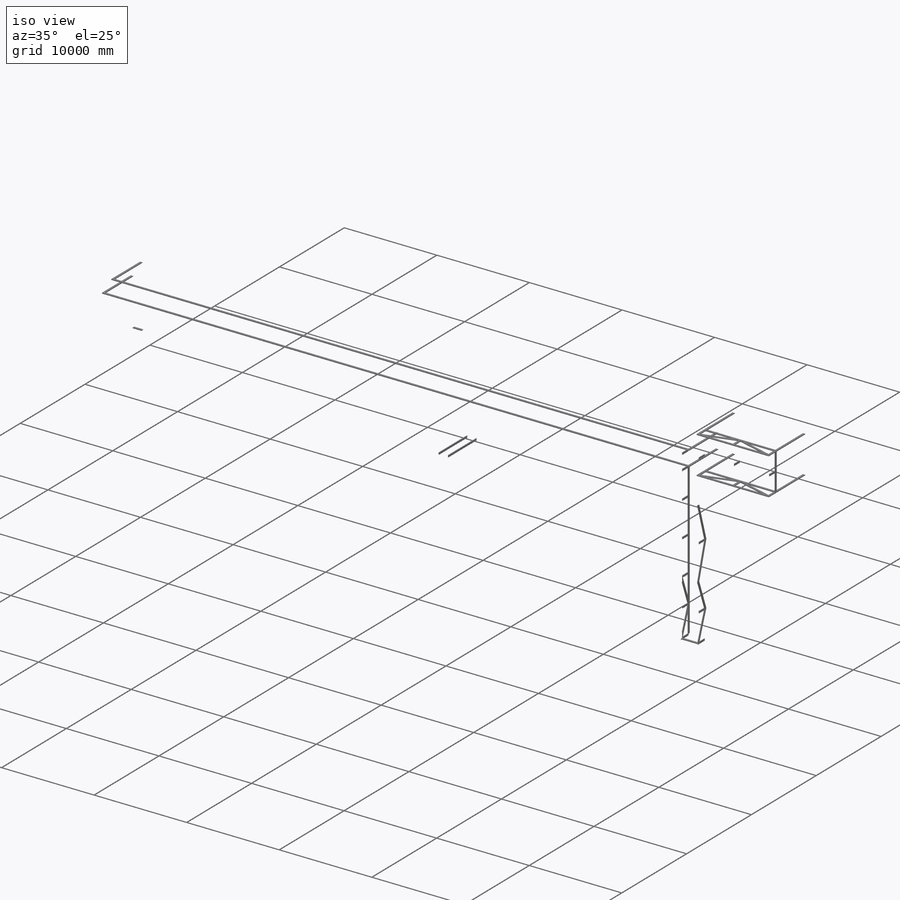
[diagram: iso view]
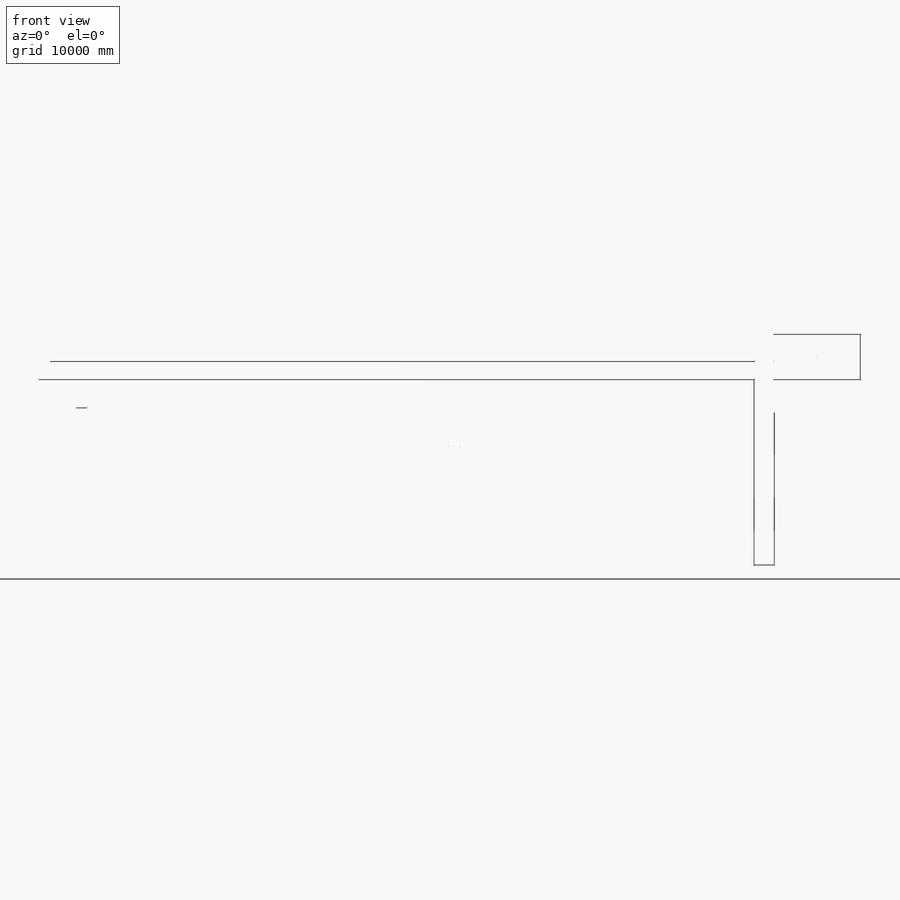
[diagram: front view]
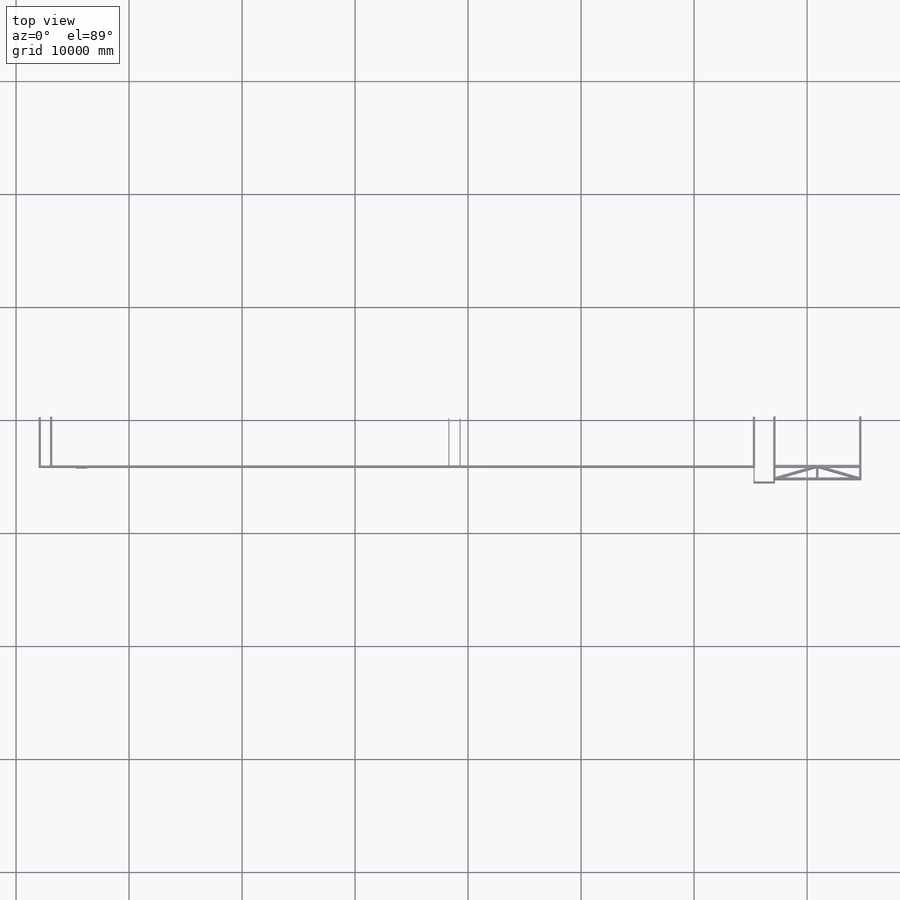
[diagram: top view]
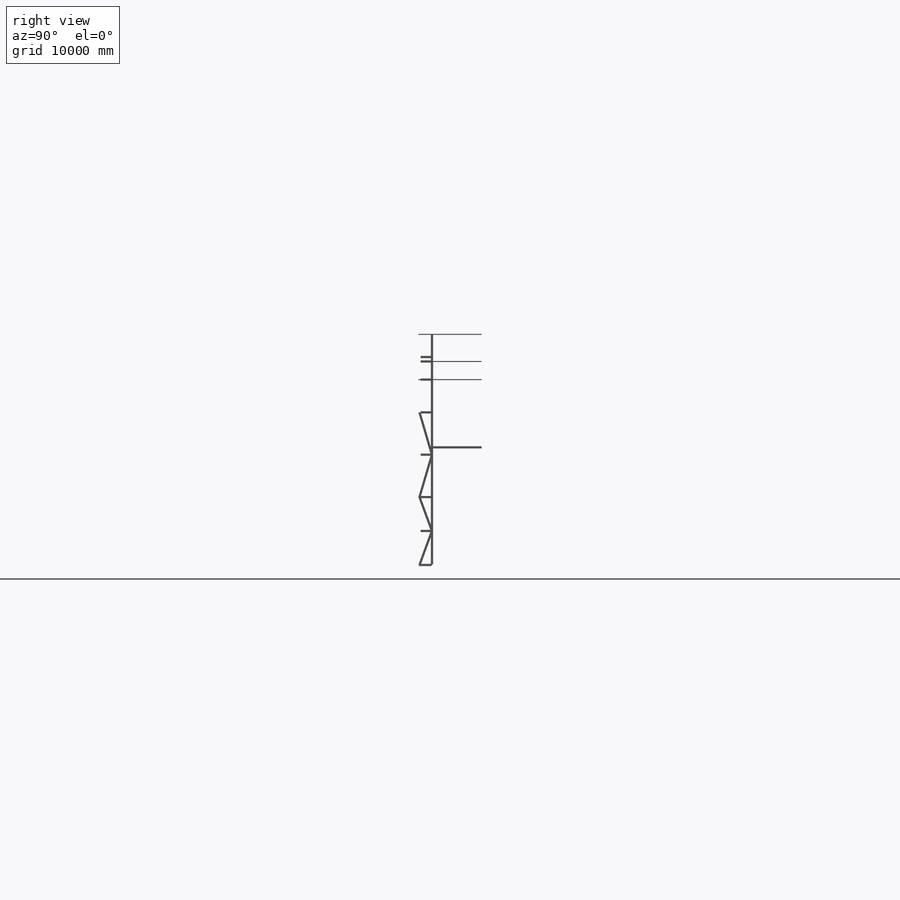
[diagram: right view]
SOLIDWORKS PART (.sldprt)
format: sldprt  version: not decoded by parser v0  size: 11,560,960 bytes
history: native  units: mm
features: sketch x62, plane x49, extrude x12, material x1 (+16 scaffold rows collapsed)
feature tree (140):
  scaffold x16  (default folders/planes/origin — collapsed)
  material  "Material <not specified>"
  sketch  "3DSketch1"  dims[c1.D1=4400.0mm c1.D2=5500.0mm c1.D3=~5606.794977mm c1.D4=~5606.794977mm c2.D3=6000.0mm c2.D4=7500.0mm c2.D5=~3884.759568mm c2.D8=3750.0mm c2.D6=~3132.391941mm c3.D8=3750.0mm c3.D7=~3323.580694mm c3.D6=3000.0mm c4.D8=~3325.944288mm c4.D10=3000.0mm c4.D9=~10112.390477mm c4.D14=10500.0mm c5.D10=~10537.302611mm c5.D11=~10537.302611mm c6.D10=1600.0mm c6.D11=1600.0mm c7.D10=1600.0mm c7.D11=1600.0mm c8.D10=~2683.731747mm c8.D52=2500.0mm c8.D11=3000.0mm c8.D12=3000.0mm c8.D13=1500.0mm c8.D9=3000.0mm c9.D13=1600.0mm c9.D14=1600.0mm c10.D13=3000.0mm c10.D14=3000.0mm c10.D15=2000.0mm c10.D16=~1000.004703mm c11.D16=~0.175717deg c11.D17=~0.175717deg c12.D16=2000.0mm c12.D17=3000.0mm c12.D18=3000.0mm c12.D19=3000.0mm c12.D20=3000.0mm c12.D21=3000.0mm c12.D22=3000.0mm c12.D23=3000.0mm c12.D24=3000.0mm c12.D25=3000.0mm c12.D26=3000.0mm c12.D27=~1601.719555mm c13.D27=~2.655164deg c13.D28=~2.655164deg c14.D27=3000.0mm c14.D28=~2543.759718mm c14.D31=3000.0mm c14.D29=2500.0mm c14.D30=~2511.180107mm c14.D34=2500.0mm c15.D31=~1842.186407mm c15.D50=3000.0mm c15.D32=2700.0mm c15.D33=2500.0mm c15.D34=~1393.871488mm c15.D56=2500.0mm c15.D35=~748.455741mm c16.D34=2500.0mm c16.D36=~2060.15255mm c17.D34=2500.0mm c17.D37=~1251.768146mm c18.D34=2500.0mm c18.D38=2500.0mm c18.D39=1000.0mm c18.D40=1000.0mm c19.D39=2500.0mm c19.D40=2700.0mm c19.D41=1000.0mm c19.D42=1000.0mm c20.D41=2700.0mm c20.D42=600.0mm c20.D43=600.0mm c20.D44=600.0mm c20.D45=600.0mm c20.D46=600.0mm c20.D47=~1328.399488mm c20.D48=~1328.399488mm c21.D47=~1328.399488mm c21.D34=600.0mm c21.D48=2184.8039mm c21.D30=600.0mm c21.D49=~1180.117243mm c22.D30=600.0mm c22.D50=~991.113911mm c22.D51=~323.538583mm c22.D55=600.0mm c22.D52=~1273.176117mm c22.D54=~1273.176117mm c22.D53=600.0mm c23.D54=~647.315945mm c23.D55=60.0mm c23.D52=~6018.518519mm c24.D55=~555.555556mm c24.D54=600.0mm c25.D55=~66064.860382mm c25.D56=~66064.860382mm c25.D52=~4496.598216mm c25.D51=~4959.947643mm c26.D52=~4218.120743mm c26.D56=4000.0mm c26.D55=~725.218719mm c27.D52=600.0mm c27.D28=3000.0mm c27.D31=3000.0mm c27.D50=2000.0mm c27.D51=2000.0mm c28.D50=~475.862069mm c28.D51=600.0mm c29.D50=600.0mm c29.D51=600.0mm c29.D52=0.0mm c29.D6=3000.0mm c29.D7=~3749.998204mm c29.D8=~2900.000241mm c29.D10=~2900.000241mm c30.D8=600.0mm c30.D10=600.0mm c31.D8=2500.0mm c31.D10=12000.0mm c31.D52=2000.0mm c31.D55=2000.0mm c31.D30=5000.0mm c31.D34=~7686.556055mm c31.D35=~7686.556055mm c32.D34=~7686.556055mm c32.D35=~7686.556055mm c33.D34=7600.0mm c33.D35=2400.0mm c33.D36=4000.0mm c33.D37=4000.0mm c34.D36=4000.0mm c34.D37=4000.0mm]
  plane  "Plane1"
  sketch  "Sketch1"  dims[c1.D5=6.35mm c1.D7=2.54mm c1.D8=2.54mm c1.D10=2.54mm c1.D11=2.54mm c1.RA=2.54mm c2.D5=7.5mm c2.D10=10.0mm c2.D1=90.0mm c2.D2=6.35mm c2.D3=44.45mm c2.D4=12.7mm c2.D6=90.0deg c3.D2=97.0deg c3.D7=90.0deg c3.D8=6.35mm c3.D9=90.0deg c3.D10=19.05mm c4.D2=90.0deg c4.D6=99.0deg c4.D7=19.05mm c4.D9=99.0deg c4.D12=5.08mm c4.D8=19.05mm c5.D6=90.0deg c5.D2=200.0mm c5.D3=7.5mm c6.D6=90.0deg c6.D7=90.0deg c6.D8=~157.817745mm c7.D6=~19.183835mm c8.D6=9.463deg c8.D7=~13.491778mm c9.D7=9.463deg c9.D2=~6.364353mm c9.D10=22.098mm c9.D6=184.023mm c10.D6=9.463deg c11.D6=~62.307608mm c12.D6=170.537deg c13.D6=184.023mm c14.D6=170.537deg c15.D6=184.023mm c16.D6=170.537deg c17.D6=~6.747162mm c18.D6=99.463deg c18.D7=~6.747162mm c19.D7=260.537deg c20.D7=~6.747162mm c21.D7=99.463deg c21.D9=45.0mm c21.D11=100.0mm c21.D10=~1.508872mm]
  plane  "Plane2"
  sketch  "Sketch11"  dims[c1.D5=6.35mm c1.D7=2.54mm c1.D8=2.54mm c1.D10=2.54mm c1.D11=2.54mm c1.RA=2.54mm c2.D5=7.5mm c2.D10=10.0mm c2.D1=90.0mm c2.D2=6.35mm c2.D3=44.45mm c2.D4=12.7mm c2.D6=90.0deg c3.D2=97.0deg c3.D7=90.0deg c3.D8=6.35mm c3.D9=90.0deg c3.D10=19.05mm c4.D2=90.0deg c4.D6=99.0deg c4.D7=19.05mm c4.D9=99.0deg c4.D12=5.08mm c4.D8=19.05mm c5.D6=90.0deg c5.D2=200.0mm c5.D3=7.5mm c6.D6=90.0deg c6.D7=90.0deg c6.D8=~157.817745mm c7.D6=~19.183835mm c8.D6=9.463deg c8.D7=~13.491778mm c9.D7=9.463deg c9.D2=~6.364353mm c9.D10=22.098mm c9.D6=184.023mm c10.D6=9.463deg c11.D6=~62.307608mm c12.D6=170.537deg c13.D6=184.023mm c14.D6=170.537deg c15.D6=184.023mm c16.D6=170.537deg c17.D6=~6.747162mm c18.D6=99.463deg c18.D7=~6.747162mm c19.D7=260.537deg c20.D7=~6.747162mm c21.D7=99.463deg c21.D9=45.0mm c21.D11=100.0mm c21.D10=~1.508872mm]
  plane  "Plane3"
  sketch  "Sketch12"  dims[c1.D5=6.35mm c1.D7=2.54mm c1.D8=2.54mm c1.D10=2.54mm c1.D11=2.54mm c1.RA=2.54mm c2.D5=7.5mm c2.D10=10.0mm c2.D1=90.0mm c2.D2=6.35mm c2.D3=44.45mm c2.D4=12.7mm c2.D6=90.0deg c3.D2=97.0deg c3.D7=90.0deg c3.D8=6.35mm c3.D9=90.0deg c3.D10=19.05mm c4.D2=90.0deg c4.D6=99.0deg c4.D7=19.05mm c4.D9=99.0deg c4.D12=5.08mm c4.D8=19.05mm c5.D6=90.0deg c5.D2=200.0mm c5.D3=7.5mm c6.D6=90.0deg c6.D7=90.0deg c6.D8=~157.817745mm c7.D6=~19.183835mm c8.D6=9.463deg c8.D7=~13.491778mm c9.D7=9.463deg c9.D2=~6.364353mm c9.D10=22.098mm c9.D6=184.023mm c10.D6=9.463deg c11.D6=~62.307608mm c12.D6=170.537deg c13.D6=184.023mm c14.D6=170.537deg c15.D6=184.023mm c16.D6=170.537deg c17.D6=~6.747162mm c18.D6=99.463deg c18.D7=~6.747162mm c19.D7=260.537deg c20.D7=~6.747162mm c21.D7=99.463deg c21.D9=45.0mm c21.D11=100.0mm c21.D10=~1.508872mm]
  plane  "Plane4"
  sketch  "Sketch13"  dims[c1.D5=6.35mm c1.D7=2.54mm c1.D8=2.54mm c1.D10=2.54mm c1.D11=2.54mm c1.RA=2.54mm c2.D5=7.5mm c2.D10=10.0mm c2.D1=90.0mm c2.D2=6.35mm c2.D3=44.45mm c2.D4=12.7mm c2.D6=90.0deg c3.D2=97.0deg c3.D7=90.0deg c3.D8=6.35mm c3.D9=90.0deg c3.D10=19.05mm c4.D2=90.0deg c4.D6=99.0deg c4.D7=19.05mm c4.D9=99.0deg c4.D12=5.08mm c4.D8=19.05mm c5.D6=90.0deg c5.D2=200.0mm c5.D3=7.5mm c6.D6=90.0deg c6.D7=90.0deg c6.D8=~157.817745mm c7.D6=~19.183835mm c8.D6=9.463deg c8.D7=~13.491778mm c9.D7=9.463deg c9.D2=~6.364353mm c9.D10=22.098mm c9.D6=184.023mm c10.D6=9.463deg c11.D6=~62.307608mm c12.D6=170.537deg c13.D6=184.023mm c14.D6=170.537deg c15.D6=184.023mm c16.D6=170.537deg c17.D6=~6.747162mm c18.D6=99.463deg c18.D7=~6.747162mm c19.D7=260.537deg c20.D7=~6.747162mm c21.D7=99.463deg c21.D9=45.0mm c21.D11=100.0mm c21.D10=~1.508872mm]
  plane  "Plane5"
  sketch  "Sketch14"  dims[c1.D5=6.35mm c1.D7=2.54mm c1.D8=2.54mm c1.D10=2.54mm c1.D11=2.54mm c1.RA=2.54mm c2.D5=7.5mm c2.D10=10.0mm c2.D1=90.0mm c2.D2=6.35mm c2.D3=44.45mm c2.D4=12.7mm c2.D6=90.0deg c3.D2=97.0deg c3.D7=90.0deg c3.D8=6.35mm c3.D9=90.0deg c3.D10=19.05mm c4.D2=90.0deg c4.D6=99.0deg c4.D7=19.05mm c4.D9=99.0deg c4.D12=5.08mm c4.D8=19.05mm c5.D6=90.0deg c5.D2=200.0mm c5.D3=7.5mm c6.D6=90.0deg c6.D7=90.0deg c6.D8=~157.817745mm c7.D6=~19.183835mm c8.D6=9.463deg c8.D7=~13.491778mm c9.D7=9.463deg c9.D2=~6.364353mm c9.D10=22.098mm c9.D6=184.023mm c10.D6=9.463deg c11.D6=~62.307608mm c12.D6=170.537deg c13.D6=184.023mm c14.D6=170.537deg c15.D6=184.023mm c16.D6=170.537deg c17.D6=~6.747162mm c18.D6=99.463deg c18.D7=~6.747162mm c19.D7=260.537deg c20.D7=~6.747162mm c21.D7=99.463deg c21.D9=45.0mm c21.D11=100.0mm c21.D10=~1.508872mm]
  plane  "Plane6"
  sketch  "Sketch15"  dims[c1.D5=6.35mm c1.D7=2.54mm c1.D8=2.54mm c1.D10=2.54mm c1.D11=2.54mm c1.RA=2.54mm c2.D5=7.5mm c2.D10=10.0mm c2.D1=90.0mm c2.D2=6.35mm c2.D3=44.45mm c2.D4=12.7mm c2.D6=90.0deg c3.D2=97.0deg c3.D7=90.0deg c3.D8=6.35mm c3.D9=90.0deg c3.D10=19.05mm c4.D2=90.0deg c4.D6=99.0deg c4.D7=19.05mm c4.D9=99.0deg c4.D12=5.08mm c4.D8=19.05mm c5.D6=90.0deg c5.D2=200.0mm c5.D3=7.5mm c6.D6=90.0deg c6.D7=90.0deg c6.D8=~157.817745mm c7.D6=~19.183835mm c8.D6=9.463deg c8.D7=~13.491778mm c9.D7=9.463deg c9.D2=~6.364353mm c9.D10=22.098mm c9.D6=184.023mm c10.D6=9.463deg c11.D6=~62.307608mm c12.D6=170.537deg c13.D6=184.023mm c14.D6=170.537deg c15.D6=184.023mm c16.D6=170.537deg c17.D6=~6.747162mm c18.D6=99.463deg c18.D7=~6.747162mm c19.D7=260.537deg c20.D7=~6.747162mm c21.D7=99.463deg c21.D9=45.0mm c21.D11=100.0mm c21.D10=~1.508872mm]
  plane  "Plane7"
  sketch  "Sketch16"  dims[c1.D5=6.35mm c1.D7=2.54mm c1.D8=2.54mm c1.D10=2.54mm c1.D11=2.54mm c1.RA=2.54mm c2.D5=7.5mm c2.D10=10.0mm c2.D1=90.0mm c2.D2=6.35mm c2.D3=44.45mm c2.D4=12.7mm c2.D6=90.0deg c3.D2=97.0deg c3.D7=90.0deg c3.D8=6.35mm c3.D9=90.0deg c3.D10=19.05mm c4.D2=90.0deg c4.D6=99.0deg c4.D7=19.05mm c4.D9=99.0deg c4.D12=5.08mm c4.D8=19.05mm c5.D6=90.0deg c5.D2=200.0mm c5.D3=7.5mm c6.D6=90.0deg c6.D7=90.0deg c6.D8=~157.817745mm c7.D6=~19.183835mm c8.D6=9.463deg c8.D7=~13.491778mm c9.D7=9.463deg c9.D2=~6.364353mm c9.D10=22.098mm c9.D6=184.023mm c10.D6=9.463deg c11.D6=~62.307608mm c12.D6=170.537deg c13.D6=184.023mm c14.D6=170.537deg c15.D6=184.023mm c16.D6=170.537deg c17.D6=~6.747162mm c18.D6=99.463deg c18.D7=~6.747162mm c19.D7=260.537deg c20.D7=~6.747162mm c21.D7=99.463deg c21.D9=45.0mm c21.D11=100.0mm c21.D10=~1.508872mm]
  plane  "Plane8"
  sketch  "Sketch17"  dims[c1.D5=6.35mm c1.D7=2.54mm c1.D8=2.54mm c1.D10=2.54mm c1.D11=2.54mm c1.RA=2.54mm c2.D5=7.5mm c2.D10=10.0mm c2.D1=90.0mm c2.D2=6.35mm c2.D3=44.45mm c2.D4=12.7mm c2.D6=90.0deg c3.D2=97.0deg c3.D7=90.0deg c3.D8=6.35mm c3.D9=90.0deg c3.D10=19.05mm c4.D2=90.0deg c4.D6=99.0deg c4.D7=19.05mm c4.D9=99.0deg c4.D12=5.08mm c4.D8=19.05mm c5.D6=90.0deg c5.D2=200.0mm c5.D3=7.5mm c6.D6=90.0deg c6.D7=90.0deg c6.D8=~157.817745mm c7.D6=~19.183835mm c8.D6=9.463deg c8.D7=~13.491778mm c9.D7=9.463deg c9.D2=~6.364353mm c9.D10=22.098mm c9.D6=184.023mm c10.D6=9.463deg c11.D6=~62.307608mm c12.D6=170.537deg c13.D6=184.023mm c14.D6=170.537deg c15.D6=184.023mm c16.D6=170.537deg c17.D6=~6.747162mm c18.D6=99.463deg c18.D7=~6.747162mm c19.D7=260.537deg c20.D7=~6.747162mm c21.D7=99.463deg c21.D9=45.0mm c21.D11=100.0mm c21.D10=~1.508872mm]
  plane  "Plane9"
  sketch  "Sketch18"  dims[c1.D5=6.35mm c1.D7=2.54mm c1.D8=2.54mm c1.D10=2.54mm c1.D11=2.54mm c1.RA=2.54mm c2.D5=7.5mm c2.D10=10.0mm c2.D1=90.0mm c2.D2=6.35mm c2.D3=44.45mm c2.D4=12.7mm c2.D6=90.0deg c3.D2=97.0deg c3.D7=90.0deg c3.D8=6.35mm c3.D9=90.0deg c3.D10=19.05mm c4.D2=90.0deg c4.D6=99.0deg c4.D7=19.05mm c4.D9=99.0deg c4.D12=5.08mm c4.D8=19.05mm c5.D6=90.0deg c5.D2=200.0mm c5.D3=7.5mm c6.D6=90.0deg c6.D7=90.0deg c6.D8=~157.817745mm c7.D6=~19.183835mm c8.D6=9.463deg c8.D7=~13.491778mm c9.D7=9.463deg c9.D2=~6.364353mm c9.D10=22.098mm c9.D6=184.023mm c10.D6=9.463deg c11.D6=~62.307608mm c12.D6=170.537deg c13.D6=184.023mm c14.D6=170.537deg c15.D6=184.023mm c16.D6=170.537deg c17.D6=~6.747162mm c18.D6=99.463deg c18.D7=~6.747162mm c19.D7=260.537deg c20.D7=~6.747162mm c21.D7=99.463deg c21.D9=45.0mm c21.D11=100.0mm c21.D10=~1.508872mm]
  plane  "Plane10"
  sketch  "Sketch19"  dims[c1.D5=6.35mm c1.D7=2.54mm c1.D8=2.54mm c1.D10=2.54mm c1.D11=2.54mm c1.RA=2.54mm c2.D5=7.5mm c2.D10=10.0mm c2.D1=90.0mm c2.D2=6.35mm c2.D3=44.45mm c2.D4=12.7mm c2.D6=90.0deg c3.D2=97.0deg c3.D7=90.0deg c3.D8=6.35mm c3.D9=90.0deg c3.D10=19.05mm c4.D2=90.0deg c4.D6=99.0deg c4.D7=19.05mm c4.D9=99.0deg c4.D12=5.08mm c4.D8=19.05mm c5.D6=90.0deg c5.D2=200.0mm c5.D3=7.5mm c6.D6=90.0deg c6.D7=90.0deg c6.D8=~157.817745mm c7.D6=~19.183835mm c8.D6=9.463deg c8.D7=~13.491778mm c9.D7=9.463deg c9.D2=~6.364353mm c9.D10=22.098mm c9.D6=184.023mm c10.D6=9.463deg c11.D6=~62.307608mm c12.D6=170.537deg c13.D6=184.023mm c14.D6=170.537deg c15.D6=184.023mm c16.D6=170.537deg c17.D6=~6.747162mm c18.D6=99.463deg c18.D7=~6.747162mm c19.D7=260.537deg c20.D7=~6.747162mm c21.D7=99.463deg c21.D9=45.0mm c21.D11=100.0mm c21.D10=~1.508872mm]
  plane  "Plane11"
  sketch  "Sketch110"  dims[c1.D5=6.35mm c1.D7=2.54mm c1.D8=2.54mm c1.D10=2.54mm c1.D11=2.54mm c1.RA=2.54mm c2.D5=7.5mm c2.D10=10.0mm c2.D1=90.0mm c2.D2=6.35mm c2.D3=44.45mm c2.D4=12.7mm c2.D6=90.0deg c3.D2=97.0deg c3.D7=90.0deg c3.D8=6.35mm c3.D9=90.0deg c3.D10=19.05mm c4.D2=90.0deg c4.D6=99.0deg c4.D7=19.05mm c4.D9=99.0deg c4.D12=5.08mm c4.D8=19.05mm c5.D6=90.0deg c5.D2=200.0mm c5.D3=7.5mm c6.D6=90.0deg c6.D7=90.0deg c6.D8=~157.817745mm c7.D6=~19.183835mm c8.D6=9.463deg c8.D7=~13.491778mm c9.D7=9.463deg c9.D2=~6.364353mm c9.D10=22.098mm c9.D6=184.023mm c10.D6=9.463deg c11.D6=~62.307608mm c12.D6=170.537deg c13.D6=184.023mm c14.D6=170.537deg c15.D6=184.023mm c16.D6=170.537deg c17.D6=~6.747162mm c18.D6=99.463deg c18.D7=~6.747162mm c19.D7=260.537deg c20.D7=~6.747162mm c21.D7=99.463deg c21.D9=45.0mm c21.D11=100.0mm c21.D10=~1.508872mm]
  plane  "Plane12"
  sketch  "Sketch111"  dims[c1.D5=6.35mm c1.D7=2.54mm c1.D8=2.54mm c1.D10=2.54mm c1.D11=2.54mm c1.RA=2.54mm c2.D5=7.5mm c2.D10=10.0mm c2.D1=90.0mm c2.D2=6.35mm c2.D3=44.45mm c2.D4=12.7mm c2.D6=90.0deg c3.D2=97.0deg c3.D7=90.0deg c3.D8=6.35mm c3.D9=90.0deg c3.D10=19.05mm c4.D2=90.0deg c4.D6=99.0deg c4.D7=19.05mm c4.D9=99.0deg c4.D12=5.08mm c4.D8=19.05mm c5.D6=90.0deg c5.D2=200.0mm c5.D3=7.5mm c6.D6=90.0deg c6.D7=90.0deg c6.D8=~157.817745mm c7.D6=~19.183835mm c8.D6=9.463deg c8.D7=~13.491778mm c9.D7=9.463deg c9.D2=~6.364353mm c9.D10=22.098mm c9.D6=184.023mm c10.D6=9.463deg c11.D6=~62.307608mm c12.D6=170.537deg c13.D6=184.023mm c14.D6=170.537deg c15.D6=184.023mm c16.D6=170.537deg c17.D6=~6.747162mm c18.D6=99.463deg c18.D7=~6.747162mm c19.D7=260.537deg c20.D7=~6.747162mm c21.D7=99.463deg c21.D9=45.0mm c21.D11=100.0mm c21.D10=~1.508872mm]
  plane  "Plane13"
  sketch  "Sketch112"  dims[c1.D5=6.35mm c1.D7=2.54mm c1.D8=2.54mm c1.D10=2.54mm c1.D11=2.54mm c1.RA=2.54mm c2.D5=7.5mm c2.D10=10.0mm c2.D1=90.0mm c2.D2=6.35mm c2.D3=44.45mm c2.D4=12.7mm c2.D6=90.0deg c3.D2=97.0deg c3.D7=90.0deg c3.D8=6.35mm c3.D9=90.0deg c3.D10=19.05mm c4.D2=90.0deg c4.D6=99.0deg c4.D7=19.05mm c4.D9=99.0deg c4.D12=5.08mm c4.D8=19.05mm c5.D6=90.0deg c5.D2=200.0mm c5.D3=7.5mm c6.D6=90.0deg c6.D7=90.0deg c6.D8=~157.817745mm c7.D6=~19.183835mm c8.D6=9.463deg c8.D7=~13.491778mm c9.D7=9.463deg c9.D2=~6.364353mm c9.D10=22.098mm c9.D6=184.023mm c10.D6=9.463deg c11.D6=~62.307608mm c12.D6=170.537deg c13.D6=184.023mm c14.D6=170.537deg c15.D6=184.023mm c16.D6=170.537deg c17.D6=~6.747162mm c18.D6=99.463deg c18.D7=~6.747162mm c19.D7=260.537deg c20.D7=~6.747162mm c21.D7=99.463deg c21.D9=45.0mm c21.D11=100.0mm c21.D10=~1.508872mm]
  plane  "Plane14"
  sketch  "Sketch113"  dims[c1.D5=6.35mm c1.D7=2.54mm c1.D8=2.54mm c1.D10=2.54mm c1.D11=2.54mm c1.RA=2.54mm c2.D5=7.5mm c2.D10=10.0mm c2.D1=90.0mm c2.D2=6.35mm c2.D3=44.45mm c2.D4=12.7mm c2.D6=90.0deg c3.D2=97.0deg c3.D7=90.0deg c3.D8=6.35mm c3.D9=90.0deg c3.D10=19.05mm c4.D2=90.0deg c4.D6=99.0deg c4.D7=19.05mm c4.D9=99.0deg c4.D12=5.08mm c4.D8=19.05mm c5.D6=90.0deg c5.D2=200.0mm c5.D3=7.5mm c6.D6=90.0deg c6.D7=90.0deg c6.D8=~157.817745mm c7.D6=~19.183835mm c8.D6=9.463deg c8.D7=~13.491778mm c9.D7=9.463deg c9.D2=~6.364353mm c9.D10=22.098mm c9.D6=184.023mm c10.D6=9.463deg c11.D6=~62.307608mm c12.D6=170.537deg c13.D6=184.023mm c14.D6=170.537deg c15.D6=184.023mm c16.D6=170.537deg c17.D6=~6.747162mm c18.D6=99.463deg c18.D7=~6.747162mm c19.D7=260.537deg c20.D7=~6.747162mm c21.D7=99.463deg c21.D9=45.0mm c21.D11=100.0mm c21.D10=~1.508872mm]
  plane  "Plane15"
  sketch  "Sketch114"  dims[c1.D5=6.35mm c1.D7=2.54mm c1.D8=2.54mm c1.D10=2.54mm c1.D11=2.54mm c1.RA=2.54mm c2.D5=7.5mm c2.D10=10.0mm c2.D1=90.0mm c2.D2=6.35mm c2.D3=44.45mm c2.D4=12.7mm c2.D6=90.0deg c3.D2=97.0deg c3.D7=90.0deg c3.D8=6.35mm c3.D9=90.0deg c3.D10=19.05mm c4.D2=90.0deg c4.D6=99.0deg c4.D7=19.05mm c4.D9=99.0deg c4.D12=5.08mm c4.D8=19.05mm c5.D6=90.0deg c5.D2=200.0mm c5.D3=7.5mm c6.D6=90.0deg c6.D7=90.0deg c6.D8=~157.817745mm c7.D6=~19.183835mm c8.D6=9.463deg c8.D7=~13.491778mm c9.D7=9.463deg c9.D2=~6.364353mm c9.D10=22.098mm c9.D6=184.023mm c10.D6=9.463deg c11.D6=~62.307608mm c12.D6=170.537deg c13.D6=184.023mm c14.D6=170.537deg c15.D6=184.023mm c16.D6=170.537deg c17.D6=~6.747162mm c18.D6=99.463deg c18.D7=~6.747162mm c19.D7=260.537deg c20.D7=~6.747162mm c21.D7=99.463deg c21.D9=45.0mm c21.D11=100.0mm c21.D10=~1.508872mm]
  plane  "Plane16"
  sketch  "Sketch115"  dims[c1.D5=6.35mm c1.D7=2.54mm c1.D8=2.54mm c1.D10=2.54mm c1.D11=2.54mm c1.RA=2.54mm c2.D5=7.5mm c2.D10=10.0mm c2.D1=90.0mm c2.D2=6.35mm c2.D3=44.45mm c2.D4=12.7mm c2.D6=90.0deg c3.D2=97.0deg c3.D7=90.0deg c3.D8=6.35mm c3.D9=90.0deg c3.D10=19.05mm c4.D2=90.0deg c4.D6=99.0deg c4.D7=19.05mm c4.D9=99.0deg c4.D12=5.08mm c4.D8=19.05mm c5.D6=90.0deg c5.D2=200.0mm c5.D3=7.5mm c6.D6=90.0deg c6.D7=90.0deg c6.D8=~157.817745mm c7.D6=~19.183835mm c8.D6=9.463deg c8.D7=~13.491778mm c9.D7=9.463deg c9.D2=~6.364353mm c9.D10=22.098mm c9.D6=184.023mm c10.D6=9.463deg c11.D6=~62.307608mm c12.D6=170.537deg c13.D6=184.023mm c14.D6=170.537deg c15.D6=184.023mm c16.D6=170.537deg c17.D6=~6.747162mm c18.D6=99.463deg c18.D7=~6.747162mm c19.D7=260.537deg c20.D7=~6.747162mm c21.D7=99.463deg c21.D9=45.0mm c21.D11=100.0mm c21.D10=~1.508872mm]
  plane  "Plane17"
  sketch  "Sketch116"  dims[c1.D5=6.35mm c1.D7=2.54mm c1.D8=2.54mm c1.D10=2.54mm c1.D11=2.54mm c1.RA=2.54mm c2.D5=7.5mm c2.D10=10.0mm c2.D1=90.0mm c2.D2=6.35mm c2.D3=44.45mm c2.D4=12.7mm c2.D6=90.0deg c3.D2=97.0deg c3.D7=90.0deg c3.D8=6.35mm c3.D9=90.0deg c3.D10=19.05mm c4.D2=90.0deg c4.D6=99.0deg c4.D7=19.05mm c4.D9=99.0deg c4.D12=5.08mm c4.D8=19.05mm c5.D6=90.0deg c5.D2=200.0mm c5.D3=7.5mm c6.D6=90.0deg c6.D7=90.0deg c6.D8=~157.817745mm c7.D6=~19.183835mm c8.D6=9.463deg c8.D7=~13.491778mm c9.D7=9.463deg c9.D2=~6.364353mm c9.D10=22.098mm c9.D6=184.023mm c10.D6=9.463deg c11.D6=~62.307608mm c12.D6=170.537deg c13.D6=184.023mm c14.D6=170.537deg c15.D6=184.023mm c16.D6=170.537deg c17.D6=~6.747162mm c18.D6=99.463deg c18.D7=~6.747162mm c19.D7=260.537deg c20.D7=~6.747162mm c21.D7=99.463deg c21.D9=45.0mm c21.D11=100.0mm c21.D10=~1.508872mm]
  plane  "Plane19"
  sketch  "Sketch118"  dims[c1.D5=6.35mm c1.D7=2.54mm c1.D8=2.54mm c1.D10=2.54mm c1.D11=2.54mm c1.RA=2.54mm c2.D5=7.5mm c2.D10=10.0mm c2.D1=90.0mm c2.D2=6.35mm c2.D3=44.45mm c2.D4=12.7mm c2.D6=90.0deg c3.D2=97.0deg c3.D7=90.0deg c3.D8=6.35mm c3.D9=90.0deg c3.D10=19.05mm c4.D2=90.0deg c4.D6=99.0deg c4.D7=19.05mm c4.D9=99.0deg c4.D12=5.08mm c4.D8=19.05mm c5.D6=90.0deg c5.D2=200.0mm c5.D3=7.5mm c6.D6=90.0deg c6.D7=90.0deg c6.D8=~157.817745mm c7.D6=~19.183835mm c8.D6=9.463deg c8.D7=~13.491778mm c9.D7=9.463deg c9.D2=~6.364353mm c9.D10=22.098mm c9.D6=184.023mm c10.D6=9.463deg c11.D6=~62.307608mm c12.D6=170.537deg c13.D6=184.023mm c14.D6=170.537deg c15.D6=184.023mm c16.D6=170.537deg c17.D6=~6.747162mm c18.D6=99.463deg c18.D7=~6.747162mm c19.D7=260.537deg c20.D7=~6.747162mm c21.D7=99.463deg c21.D9=45.0mm c21.D11=100.0mm c21.D10=~1.508872mm]
  plane  "Plane20"
  sketch  "Sketch119"  dims[c1.D5=6.35mm c1.D7=2.54mm c1.D8=2.54mm c1.D10=2.54mm c1.D11=2.54mm c1.RA=2.54mm c2.D5=7.5mm c2.D10=10.0mm c2.D1=90.0mm c2.D2=6.35mm c2.D3=44.45mm c2.D4=12.7mm c2.D6=90.0deg c3.D2=97.0deg c3.D7=90.0deg c3.D8=6.35mm c3.D9=90.0deg c3.D10=19.05mm c4.D2=90.0deg c4.D6=99.0deg c4.D7=19.05mm c4.D9=99.0deg c4.D12=5.08mm c4.D8=19.05mm c5.D6=90.0deg c5.D2=200.0mm c5.D3=7.5mm c6.D6=90.0deg c6.D7=90.0deg c6.D8=~157.817745mm c7.D6=~19.183835mm c8.D6=9.463deg c8.D7=~13.491778mm c9.D7=9.463deg c9.D2=~6.364353mm c9.D10=22.098mm c9.D6=184.023mm c10.D6=9.463deg c11.D6=~62.307608mm c12.D6=170.537deg c13.D6=184.023mm c14.D6=170.537deg c15.D6=184.023mm c16.D6=170.537deg c17.D6=~6.747162mm c18.D6=99.463deg c18.D7=~6.747162mm c19.D7=260.537deg c20.D7=~6.747162mm c21.D7=99.463deg c21.D9=45.0mm c21.D11=100.0mm c21.D10=~1.508872mm]
  plane  "Plane21"
  sketch  "Sketch120"  dims[c1.D5=6.35mm c1.D7=2.54mm c1.D8=2.54mm c1.D10=2.54mm c1.D11=2.54mm c1.RA=2.54mm c2.D5=7.5mm c2.D10=10.0mm c2.D1=90.0mm c2.D2=6.35mm c2.D3=44.45mm c2.D4=12.7mm c2.D6=90.0deg c3.D2=97.0deg c3.D7=90.0deg c3.D8=6.35mm c3.D9=90.0deg c3.D10=19.05mm c4.D2=90.0deg c4.D6=99.0deg c4.D7=19.05mm c4.D9=99.0deg c4.D12=5.08mm c4.D8=19.05mm c5.D6=90.0deg c5.D2=200.0mm c5.D3=7.5mm c6.D6=90.0deg c6.D7=90.0deg c6.D8=~157.817745mm c7.D6=~19.183835mm c8.D6=9.463deg c8.D7=~13.491778mm c9.D7=9.463deg c9.D2=~6.364353mm c9.D10=22.098mm c9.D6=184.023mm c10.D6=9.463deg c11.D6=~62.307608mm c12.D6=170.537deg c13.D6=184.023mm c14.D6=170.537deg c15.D6=184.023mm c16.D6=170.537deg c17.D6=~6.747162mm c18.D6=99.463deg c18.D7=~6.747162mm c19.D7=260.537deg c20.D7=~6.747162mm c21.D7=99.463deg c21.D9=45.0mm c21.D11=100.0mm c21.D10=~1.508872mm]
  plane  "Plane22"
  sketch  "Sketch121"  dims[c1.D5=6.35mm c1.D7=2.54mm c1.D8=2.54mm c1.D10=2.54mm c1.D11=2.54mm c1.RA=2.54mm c2.D5=7.5mm c2.D10=10.0mm c2.D1=90.0mm c2.D2=6.35mm c2.D3=44.45mm c2.D4=12.7mm c2.D6=90.0deg c3.D2=97.0deg c3.D7=90.0deg c3.D8=6.35mm c3.D9=90.0deg c3.D10=19.05mm c4.D2=90.0deg c4.D6=99.0deg c4.D7=19.05mm c4.D9=99.0deg c4.D12=5.08mm c4.D8=19.05mm c5.D6=90.0deg c5.D2=200.0mm c5.D3=7.5mm c6.D6=90.0deg c6.D7=90.0deg c6.D8=~157.817745mm c7.D6=~19.183835mm c8.D6=9.463deg c8.D7=~13.491778mm c9.D7=9.463deg c9.D2=~6.364353mm c9.D10=22.098mm c9.D6=184.023mm c10.D6=9.463deg c11.D6=~62.307608mm c12.D6=170.537deg c13.D6=184.023mm c14.D6=170.537deg c15.D6=184.023mm c16.D6=170.537deg c17.D6=~6.747162mm c18.D6=99.463deg c18.D7=~6.747162mm c19.D7=260.537deg c20.D7=~6.747162mm c21.D7=99.463deg c21.D9=45.0mm c21.D11=100.0mm c21.D10=~1.508872mm]
  plane  "Plane23"
  sketch  "Sketch122"  dims[c1.D5=6.35mm c1.D7=2.54mm c1.D8=2.54mm c1.D10=2.54mm c1.D11=2.54mm c1.RA=2.54mm c2.D5=7.5mm c2.D10=10.0mm c2.D1=90.0mm c2.D2=6.35mm c2.D3=44.45mm c2.D4=12.7mm c2.D6=90.0deg c3.D2=97.0deg c3.D7=90.0deg c3.D8=6.35mm c3.D9=90.0deg c3.D10=19.05mm c4.D2=90.0deg c4.D6=99.0deg c4.D7=19.05mm c4.D9=99.0deg c4.D12=5.08mm c4.D8=19.05mm c5.D6=90.0deg c5.D2=200.0mm c5.D3=7.5mm c6.D6=90.0deg c6.D7=90.0deg c6.D8=~157.817745mm c7.D6=~19.183835mm c8.D6=9.463deg c8.D7=~13.491778mm c9.D7=9.463deg c9.D2=~6.364353mm c9.D10=22.098mm c9.D6=184.023mm c10.D6=9.463deg c11.D6=~62.307608mm c12.D6=170.537deg c13.D6=184.023mm c14.D6=170.537deg c15.D6=184.023mm c16.D6=170.537deg c17.D6=~6.747162mm c18.D6=99.463deg c18.D7=~6.747162mm c19.D7=260.537deg c20.D7=~6.747162mm c21.D7=99.463deg c21.D9=45.0mm c21.D11=100.0mm c21.D10=~1.508872mm]
  plane  "Plane24"
  sketch  "Sketch123"  dims[c1.D5=6.35mm c1.D7=2.54mm c1.D8=2.54mm c1.D10=2.54mm c1.D11=2.54mm c1.RA=2.54mm c2.D5=7.5mm c2.D10=10.0mm c2.D1=90.0mm c2.D2=6.35mm c2.D3=44.45mm c2.D4=12.7mm c2.D6=90.0deg c3.D2=97.0deg c3.D7=90.0deg c3.D8=6.35mm c3.D9=90.0deg c3.D10=19.05mm c4.D2=90.0deg c4.D6=99.0deg c4.D7=19.05mm c4.D9=99.0deg c4.D12=5.08mm c4.D8=19.05mm c5.D6=90.0deg c5.D2=200.0mm c5.D3=7.5mm c6.D6=90.0deg c6.D7=90.0deg c6.D8=~157.817745mm c7.D6=~19.183835mm c8.D6=9.463deg c8.D7=~13.491778mm c9.D7=9.463deg c9.D2=~6.364353mm c9.D10=22.098mm c9.D6=184.023mm c10.D6=9.463deg c11.D6=~62.307608mm c12.D6=170.537deg c13.D6=184.023mm c14.D6=170.537deg c15.D6=184.023mm c16.D6=170.537deg c17.D6=~6.747162mm c18.D6=99.463deg c18.D7=~6.747162mm c19.D7=260.537deg c20.D7=~6.747162mm c21.D7=99.463deg c21.D9=45.0mm c21.D11=100.0mm c21.D10=~1.508872mm]
  plane  "Plane25"
  sketch  "Sketch124"  dims[c1.D5=6.35mm c1.D7=2.54mm c1.D8=2.54mm c1.D10=2.54mm c1.D11=2.54mm c1.RA=2.54mm c2.D5=7.5mm c2.D10=10.0mm c2.D1=90.0mm c2.D2=6.35mm c2.D3=44.45mm c2.D4=12.7mm c2.D6=90.0deg c3.D2=97.0deg c3.D7=90.0deg c3.D8=6.35mm c3.D9=90.0deg c3.D10=19.05mm c4.D2=90.0deg c4.D6=99.0deg c4.D7=19.05mm c4.D9=99.0deg c4.D12=5.08mm c4.D8=19.05mm c5.D6=90.0deg c5.D2=200.0mm c5.D3=7.5mm c6.D6=90.0deg c6.D7=90.0deg c6.D8=~157.817745mm c7.D6=~19.183835mm c8.D6=9.463deg c8.D7=~13.491778mm c9.D7=9.463deg c9.D2=~6.364353mm c9.D10=22.098mm c9.D6=184.023mm c10.D6=9.463deg c11.D6=~62.307608mm c12.D6=170.537deg c13.D6=184.023mm c14.D6=170.537deg c15.D6=184.023mm c16.D6=170.537deg c17.D6=~6.747162mm c18.D6=99.463deg c18.D7=~6.747162mm c19.D7=260.537deg c20.D7=~6.747162mm c21.D7=99.463deg c21.D9=45.0mm c21.D11=100.0mm c21.D10=~1.508872mm]
  plane  "Plane26"
  sketch  "Sketch125"  dims[c1.D5=6.35mm c1.D7=2.54mm c1.D8=2.54mm c1.D10=2.54mm c1.D11=2.54mm c1.RA=2.54mm c2.D5=7.5mm c2.D10=10.0mm c2.D1=90.0mm c2.D2=6.35mm c2.D3=44.45mm c2.D4=12.7mm c2.D6=90.0deg c3.D2=97.0deg c3.D7=90.0deg c3.D8=6.35mm c3.D9=90.0deg c3.D10=19.05mm c4.D2=90.0deg c4.D6=99.0deg c4.D7=19.05mm c4.D9=99.0deg c4.D12=5.08mm c4.D8=19.05mm c5.D6=90.0deg c5.D2=200.0mm c5.D3=7.5mm c6.D6=90.0deg c6.D7=90.0deg c6.D8=~157.817745mm c7.D6=~19.183835mm c8.D6=9.463deg c8.D7=~13.491778mm c9.D7=9.463deg c9.D2=~6.364353mm c9.D10=22.098mm c9.D6=184.023mm c10.D6=9.463deg c11.D6=~62.307608mm c12.D6=170.537deg c13.D6=184.023mm c14.D6=170.537deg c15.D6=184.023mm c16.D6=170.537deg c17.D6=~6.747162mm c18.D6=99.463deg c18.D7=~6.747162mm c19.D7=260.537deg c20.D7=~6.747162mm c21.D7=99.463deg c21.D9=45.0mm c21.D11=100.0mm c21.D10=~1.508872mm]
  plane  "Plane28"
  sketch  "Sketch127"  dims[c1.D5=6.35mm c1.D7=2.54mm c1.D8=2.54mm c1.D10=2.54mm c1.D11=2.54mm c1.RA=2.54mm c2.D5=7.5mm c2.D10=10.0mm c2.D1=90.0mm c2.D2=6.35mm c2.D3=44.45mm c2.D4=12.7mm c2.D6=90.0deg c3.D2=97.0deg c3.D7=90.0deg c3.D8=6.35mm c3.D9=90.0deg c3.D10=19.05mm c4.D2=90.0deg c4.D6=99.0deg c4.D7=19.05mm c4.D9=99.0deg c4.D12=5.08mm c4.D8=19.05mm c5.D6=90.0deg c5.D2=200.0mm c5.D3=7.5mm c6.D6=90.0deg c6.D7=90.0deg c6.D8=~157.817745mm c7.D6=~19.183835mm c8.D6=9.463deg c8.D7=~13.491778mm c9.D7=9.463deg c9.D2=~6.364353mm c9.D10=22.098mm c9.D6=184.023mm c10.D6=9.463deg c11.D6=~62.307608mm c12.D6=170.537deg c13.D6=184.023mm c14.D6=170.537deg c15.D6=184.023mm c16.D6=170.537deg c17.D6=~6.747162mm c18.D6=99.463deg c18.D7=~6.747162mm c19.D7=260.537deg c20.D7=~6.747162mm c21.D7=99.463deg c21.D9=45.0mm c21.D11=100.0mm c21.D10=~1.508872mm]
  plane  "Plane30"
  sketch  "Sketch129"  dims[c1.D5=6.35mm c1.D7=2.54mm c1.D8=2.54mm c1.D10=2.54mm c1.D11=2.54mm c1.RA=2.54mm c2.D5=7.5mm c2.D10=10.0mm c2.D1=90.0mm c2.D2=6.35mm c2.D3=44.45mm c2.D4=12.7mm c2.D6=90.0deg c3.D2=97.0deg c3.D7=90.0deg c3.D8=6.35mm c3.D9=90.0deg c3.D10=19.05mm c4.D2=90.0deg c4.D6=99.0deg c4.D7=19.05mm c4.D9=99.0deg c4.D12=5.08mm c4.D8=19.05mm c5.D6=90.0deg c5.D2=200.0mm c5.D3=7.5mm c6.D6=90.0deg c6.D7=90.0deg c6.D8=~157.817745mm c7.D6=~19.183835mm c8.D6=9.463deg c8.D7=~13.491778mm c9.D7=9.463deg c9.D2=~6.364353mm c9.D10=22.098mm c9.D6=184.023mm c10.D6=9.463deg c11.D6=~62.307608mm c12.D6=170.537deg c13.D6=184.023mm c14.D6=170.537deg c15.D6=184.023mm c16.D6=170.537deg c17.D6=~6.747162mm c18.D6=99.463deg c18.D7=~6.747162mm c19.D7=260.537deg c20.D7=~6.747162mm c21.D7=99.463deg c21.D9=45.0mm c21.D11=100.0mm c21.D10=~1.508872mm]
  plane  "Plane31"
  sketch  "Sketch130"  dims[c1.D5=6.35mm c1.D7=2.54mm c1.D8=2.54mm c1.D10=2.54mm c1.D11=2.54mm c1.RA=2.54mm c2.D5=7.5mm c2.D10=10.0mm c2.D1=90.0mm c2.D2=6.35mm c2.D3=44.45mm c2.D4=12.7mm c2.D6=90.0deg c3.D2=97.0deg c3.D7=90.0deg c3.D8=6.35mm c3.D9=90.0deg c3.D10=19.05mm c4.D2=90.0deg c4.D6=99.0deg c4.D7=19.05mm c4.D9=99.0deg c4.D12=5.08mm c4.D8=19.05mm c5.D6=90.0deg c5.D2=200.0mm c5.D3=7.5mm c6.D6=90.0deg c6.D7=90.0deg c6.D8=~157.817745mm c7.D6=~19.183835mm c8.D6=9.463deg c8.D7=~13.491778mm c9.D7=9.463deg c9.D2=~6.364353mm c9.D10=22.098mm c9.D6=184.023mm c10.D6=9.463deg c11.D6=~62.307608mm c12.D6=170.537deg c13.D6=184.023mm c14.D6=170.537deg c15.D6=184.023mm c16.D6=170.537deg c17.D6=~6.747162mm c18.D6=99.463deg c18.D7=~6.747162mm c19.D7=260.537deg c20.D7=~6.747162mm c21.D7=99.463deg c21.D9=45.0mm c21.D11=100.0mm c21.D10=~1.508872mm]
  plane  "Plane32"
  sketch  "Sketch131"  dims[c1.D5=6.35mm c1.D7=2.54mm c1.D8=2.54mm c1.D10=2.54mm c1.D11=2.54mm c1.RA=2.54mm c2.D5=7.5mm c2.D10=10.0mm c2.D1=90.0mm c2.D2=6.35mm c2.D3=44.45mm c2.D4=12.7mm c2.D6=90.0deg c3.D2=97.0deg c3.D7=90.0deg c3.D8=6.35mm c3.D9=90.0deg c3.D10=19.05mm c4.D2=90.0deg c4.D6=99.0deg c4.D7=19.05mm c4.D9=99.0deg c4.D12=5.08mm c4.D8=19.05mm c5.D6=90.0deg c5.D2=200.0mm c5.D3=7.5mm c6.D6=90.0deg c6.D7=90.0deg c6.D8=~157.817745mm c7.D6=~19.183835mm c8.D6=9.463deg c8.D7=~13.491778mm c9.D7=9.463deg c9.D2=~6.364353mm c9.D10=22.098mm c9.D6=184.023mm c10.D6=9.463deg c11.D6=~62.307608mm c12.D6=170.537deg c13.D6=184.023mm c14.D6=170.537deg c15.D6=184.023mm c16.D6=170.537deg c17.D6=~6.747162mm c18.D6=99.463deg c18.D7=~6.747162mm c19.D7=260.537deg c20.D7=~6.747162mm c21.D7=99.463deg c21.D9=45.0mm c21.D11=100.0mm c21.D10=~1.508872mm]
  plane  "Plane33"
  sketch  "Sketch132"  dims[c1.D5=6.35mm c1.D7=2.54mm c1.D8=2.54mm c1.D10=2.54mm c1.D11=2.54mm c1.RA=2.54mm c2.D5=7.5mm c2.D10=10.0mm c2.D1=90.0mm c2.D2=6.35mm c2.D3=44.45mm c2.D4=12.7mm c2.D6=90.0deg c3.D2=97.0deg c3.D7=90.0deg c3.D8=6.35mm c3.D9=90.0deg c3.D10=19.05mm c4.D2=90.0deg c4.D6=99.0deg c4.D7=19.05mm c4.D9=99.0deg c4.D12=5.08mm c4.D8=19.05mm c5.D6=90.0deg c5.D2=200.0mm c5.D3=7.5mm c6.D6=90.0deg c6.D7=90.0deg c6.D8=~157.817745mm c7.D6=~19.183835mm c8.D6=9.463deg c8.D7=~13.491778mm c9.D7=9.463deg c9.D2=~6.364353mm c9.D10=22.098mm c9.D6=184.023mm c10.D6=9.463deg c11.D6=~62.307608mm c12.D6=170.537deg c13.D6=184.023mm c14.D6=170.537deg c15.D6=184.023mm c16.D6=170.537deg c17.D6=~6.747162mm c18.D6=99.463deg c18.D7=~6.747162mm c19.D7=260.537deg c20.D7=~6.747162mm c21.D7=99.463deg c21.D9=45.0mm c21.D11=100.0mm c21.D10=~1.508872mm]
  plane  "Plane34"
  sketch  "Sketch133"  dims[c1.D5=6.35mm c1.D7=2.54mm c1.D8=2.54mm c1.D10=2.54mm c1.D11=2.54mm c1.RA=2.54mm c2.D5=7.5mm c2.D10=10.0mm c2.D1=90.0mm c2.D2=6.35mm c2.D3=44.45mm c2.D4=12.7mm c2.D6=90.0deg c3.D2=97.0deg c3.D7=90.0deg c3.D8=6.35mm c3.D9=90.0deg c3.D10=19.05mm c4.D2=90.0deg c4.D6=99.0deg c4.D7=19.05mm c4.D9=99.0deg c4.D12=5.08mm c4.D8=19.05mm c5.D6=90.0deg c5.D2=200.0mm c5.D3=7.5mm c6.D6=90.0deg c6.D7=90.0deg c6.D8=~157.817745mm c7.D6=~19.183835mm c8.D6=9.463deg c8.D7=~13.491778mm c9.D7=9.463deg c9.D2=~6.364353mm c9.D10=22.098mm c9.D6=184.023mm c10.D6=9.463deg c11.D6=~62.307608mm c12.D6=170.537deg c13.D6=184.023mm c14.D6=170.537deg c15.D6=184.023mm c16.D6=170.537deg c17.D6=~6.747162mm c18.D6=99.463deg c18.D7=~6.747162mm c19.D7=260.537deg c20.D7=~6.747162mm c21.D7=99.463deg c21.D9=45.0mm c21.D11=100.0mm c21.D10=~1.508872mm]
  plane  "Plane35"
  sketch  "Sketch134"  dims[c1.D5=6.35mm c1.D7=2.54mm c1.D8=2.54mm c1.D10=2.54mm c1.D11=2.54mm c1.RA=2.54mm c2.D5=7.5mm c2.D10=10.0mm c2.D1=90.0mm c2.D2=6.35mm c2.D3=44.45mm c2.D4=12.7mm c2.D6=90.0deg c3.D2=97.0deg c3.D7=90.0deg c3.D8=6.35mm c3.D9=90.0deg c3.D10=19.05mm c4.D2=90.0deg c4.D6=99.0deg c4.D7=19.05mm c4.D9=99.0deg c4.D12=5.08mm c4.D8=19.05mm c5.D6=90.0deg c5.D2=200.0mm c5.D3=7.5mm c6.D6=90.0deg c6.D7=90.0deg c6.D8=~157.817745mm c7.D6=~19.183835mm c8.D6=9.463deg c8.D7=~13.491778mm c9.D7=9.463deg c9.D2=~6.364353mm c9.D10=22.098mm c9.D6=184.023mm c10.D6=9.463deg c11.D6=~62.307608mm c12.D6=170.537deg c13.D6=184.023mm c14.D6=170.537deg c15.D6=184.023mm c16.D6=170.537deg c17.D6=~6.747162mm c18.D6=99.463deg c18.D7=~6.747162mm c19.D7=260.537deg c20.D7=~6.747162mm c21.D7=99.463deg c21.D9=45.0mm c21.D11=100.0mm c21.D10=~1.508872mm]
  plane  "Plane36"
  sketch  "Sketch135"  dims[c1.D5=6.35mm c1.D7=2.54mm c1.D8=2.54mm c1.D10=2.54mm c1.D11=2.54mm c1.RA=2.54mm c2.D5=7.5mm c2.D10=10.0mm c2.D1=90.0mm c2.D2=6.35mm c2.D3=44.45mm c2.D4=12.7mm c2.D6=90.0deg c3.D2=97.0deg c3.D7=90.0deg c3.D8=6.35mm c3.D9=90.0deg c3.D10=19.05mm c4.D2=90.0deg c4.D6=99.0deg c4.D7=19.05mm c4.D9=99.0deg c4.D12=5.08mm c4.D8=19.05mm c5.D6=90.0deg c5.D2=200.0mm c5.D3=7.5mm c6.D6=90.0deg c6.D7=90.0deg c6.D8=~157.817745mm c7.D6=~19.183835mm c8.D6=9.463deg c8.D7=~13.491778mm c9.D7=9.463deg c9.D2=~6.364353mm c9.D10=22.098mm c9.D6=184.023mm c10.D6=9.463deg c11.D6=~62.307608mm c12.D6=170.537deg c13.D6=184.023mm c14.D6=170.537deg c15.D6=184.023mm c16.D6=170.537deg c17.D6=~6.747162mm c18.D6=99.463deg c18.D7=~6.747162mm c19.D7=260.537deg c20.D7=~6.747162mm c21.D7=99.463deg c21.D9=45.0mm c21.D11=100.0mm c21.D10=~1.508872mm]
  plane  "Plane37"
  sketch  "Sketch136"  dims[c1.D5=6.35mm c1.D7=2.54mm c1.D8=2.54mm c1.D10=2.54mm c1.D11=2.54mm c1.RA=2.54mm c2.D5=7.5mm c2.D10=10.0mm c2.D1=90.0mm c2.D2=6.35mm c2.D3=44.45mm c2.D4=12.7mm c2.D6=90.0deg c3.D2=97.0deg c3.D7=90.0deg c3.D8=6.35mm c3.D9=90.0deg c3.D10=19.05mm c4.D2=90.0deg c4.D6=99.0deg c4.D7=19.05mm c4.D9=99.0deg c4.D12=5.08mm c4.D8=19.05mm c5.D6=90.0deg c5.D2=200.0mm c5.D3=7.5mm c6.D6=90.0deg c6.D7=90.0deg c6.D8=~157.817745mm c7.D6=~19.183835mm c8.D6=9.463deg c8.D7=~13.491778mm c9.D7=9.463deg c9.D2=~6.364353mm c9.D10=22.098mm c9.D6=184.023mm c10.D6=9.463deg c11.D6=~62.307608mm c12.D6=170.537deg c13.D6=184.023mm c14.D6=170.537deg c15.D6=184.023mm c16.D6=170.537deg c17.D6=~6.747162mm c18.D6=99.463deg c18.D7=~6.747162mm c19.D7=260.537deg c20.D7=~6.747162mm c21.D7=99.463deg c21.D9=45.0mm c21.D11=100.0mm c21.D10=~1.508872mm]
  plane  "Plane38"
  sketch  "Sketch137"  dims[c1.D5=6.35mm c1.D7=2.54mm c1.D8=2.54mm c1.D10=2.54mm c1.D11=2.54mm c1.RA=2.54mm c2.D5=7.5mm c2.D10=10.0mm c2.D1=90.0mm c2.D2=6.35mm c2.D3=44.45mm c2.D4=12.7mm c2.D6=90.0deg c3.D2=97.0deg c3.D7=90.0deg c3.D8=6.35mm c3.D9=90.0deg c3.D10=19.05mm c4.D2=90.0deg c4.D6=99.0deg c4.D7=19.05mm c4.D9=99.0deg c4.D12=5.08mm c4.D8=19.05mm c5.D6=90.0deg c5.D2=200.0mm c5.D3=7.5mm c6.D6=90.0deg c6.D7=90.0deg c6.D8=~157.817745mm c7.D6=~19.183835mm c8.D6=9.463deg c8.D7=~13.491778mm c9.D7=9.463deg c9.D2=~6.364353mm c9.D10=22.098mm c9.D6=184.023mm c10.D6=9.463deg c11.D6=~62.307608mm c12.D6=170.537deg c13.D6=184.023mm c14.D6=170.537deg c15.D6=184.023mm c16.D6=170.537deg c17.D6=~6.747162mm c18.D6=99.463deg c18.D7=~6.747162mm c19.D7=260.537deg c20.D7=~6.747162mm c21.D7=99.463deg c21.D9=45.0mm c21.D11=100.0mm c21.D10=~1.508872mm]
  plane  "Plane39"
  sketch  "Sketch138"  dims[c1.D5=6.35mm c1.D7=2.54mm c1.D8=2.54mm c1.D10=2.54mm c1.D11=2.54mm c1.RA=2.54mm c2.D5=7.5mm c2.D10=10.0mm c2.D1=90.0mm c2.D2=6.35mm c2.D3=44.45mm c2.D4=12.7mm c2.D6=90.0deg c3.D2=97.0deg c3.D7=90.0deg c3.D8=6.35mm c3.D9=90.0deg c3.D10=19.05mm c4.D2=90.0deg c4.D6=99.0deg c4.D7=19.05mm c4.D9=99.0deg c4.D12=5.08mm c4.D8=19.05mm c5.D6=90.0deg c5.D2=200.0mm c5.D3=7.5mm c6.D6=90.0deg c6.D7=90.0deg c6.D8=~157.817745mm c7.D6=~19.183835mm c8.D6=9.463deg c8.D7=~13.491778mm c9.D7=9.463deg c9.D2=~6.364353mm c9.D10=22.098mm c9.D6=184.023mm c10.D6=9.463deg c11.D6=~62.307608mm c12.D6=170.537deg c13.D6=184.023mm c14.D6=170.537deg c15.D6=184.023mm c16.D6=170.537deg c17.D6=~6.747162mm c18.D6=99.463deg c18.D7=~6.747162mm c19.D7=260.537deg c20.D7=~6.747162mm c21.D7=99.463deg c21.D9=45.0mm c21.D11=100.0mm c21.D10=~1.508872mm]
  plane  "Plane40"
  sketch  "Sketch139"  dims[c1.D5=6.35mm c1.D7=2.54mm c1.D8=2.54mm c1.D10=2.54mm c1.D11=2.54mm c1.RA=2.54mm c2.D5=7.5mm c2.D10=10.0mm c2.D1=90.0mm c2.D2=6.35mm c2.D3=44.45mm c2.D4=12.7mm c2.D6=90.0deg c3.D2=97.0deg c3.D7=90.0deg c3.D8=6.35mm c3.D9=90.0deg c3.D10=19.05mm c4.D2=90.0deg c4.D6=99.0deg c4.D7=19.05mm c4.D9=99.0deg c4.D12=5.08mm c4.D8=19.05mm c5.D6=90.0deg c5.D2=200.0mm c5.D3=7.5mm c6.D6=90.0deg c6.D7=90.0deg c6.D8=~157.817745mm c7.D6=~19.183835mm c8.D6=9.463deg c8.D7=~13.491778mm c9.D7=9.463deg c9.D2=~6.364353mm c9.D10=22.098mm c9.D6=184.023mm c10.D6=9.463deg c11.D6=~62.307608mm c12.D6=170.537deg c13.D6=184.023mm c14.D6=170.537deg c15.D6=184.023mm c16.D6=170.537deg c17.D6=~6.747162mm c18.D6=99.463deg c18.D7=~6.747162mm c19.D7=260.537deg c20.D7=~6.747162mm c21.D7=99.463deg c21.D9=45.0mm c21.D11=100.0mm c21.D10=~1.508872mm]
  plane  "Plane41"
  sketch  "Sketch140"  dims[c1.D5=6.35mm c1.D7=2.54mm c1.D8=2.54mm c1.D10=2.54mm c1.D11=2.54mm c1.RA=2.54mm c2.D5=7.5mm c2.D10=10.0mm c2.D1=90.0mm c2.D2=6.35mm c2.D3=44.45mm c2.D4=12.7mm c2.D6=90.0deg c3.D2=97.0deg c3.D7=90.0deg c3.D8=6.35mm c3.D9=90.0deg c3.D10=19.05mm c4.D2=90.0deg c4.D6=99.0deg c4.D7=19.05mm c4.D9=99.0deg c4.D12=5.08mm c4.D8=19.05mm c5.D6=90.0deg c5.D2=200.0mm c5.D3=7.5mm c6.D6=90.0deg c6.D7=90.0deg c6.D8=~157.817745mm c7.D6=~19.183835mm c8.D6=9.463deg c8.D7=~13.491778mm c9.D7=9.463deg c9.D2=~6.364353mm c9.D10=22.098mm c9.D6=184.023mm c10.D6=9.463deg c11.D6=~62.307608mm c12.D6=170.537deg c13.D6=184.023mm c14.D6=170.537deg c15.D6=184.023mm c16.D6=170.537deg c17.D6=~6.747162mm c18.D6=99.463deg c18.D7=~6.747162mm c19.D7=260.537deg c20.D7=~6.747162mm c21.D7=99.463deg c21.D9=45.0mm c21.D11=100.0mm c21.D10=~1.508872mm]
  plane  "Plane42"
  sketch  "Sketch141"  dims[c1.D5=6.35mm c1.D7=2.54mm c1.D8=2.54mm c1.D10=2.54mm c1.D11=2.54mm c1.RA=2.54mm c2.D5=7.5mm c2.D10=10.0mm c2.D1=90.0mm c2.D2=6.35mm c2.D3=44.45mm c2.D4=12.7mm c2.D6=90.0deg c3.D2=97.0deg c3.D7=90.0deg c3.D8=6.35mm c3.D9=90.0deg c3.D10=19.05mm c4.D2=90.0deg c4.D6=99.0deg c4.D7=19.05mm c4.D9=99.0deg c4.D12=5.08mm c4.D8=19.05mm c5.D6=90.0deg c5.D2=200.0mm c5.D3=7.5mm c6.D6=90.0deg c6.D7=90.0deg c6.D8=~157.817745mm c7.D6=~19.183835mm c8.D6=9.463deg c8.D7=~13.491778mm c9.D7=9.463deg c9.D2=~6.364353mm c9.D10=22.098mm c9.D6=184.023mm c10.D6=9.463deg c11.D6=~62.307608mm c12.D6=170.537deg c13.D6=184.023mm c14.D6=170.537deg c15.D6=184.023mm c16.D6=170.537deg c17.D6=~6.747162mm c18.D6=99.463deg c18.D7=~6.747162mm c19.D7=260.537deg c20.D7=~6.747162mm c21.D7=99.463deg c21.D9=45.0mm c21.D11=100.0mm c21.D10=~1.508872mm]
  plane  "Plane45"
  sketch  "Sketch144"  dims[c1.D5=6.35mm c1.D7=2.54mm c1.D8=2.54mm c1.D10=2.54mm c1.D11=2.54mm c1.RA=2.54mm c2.D5=7.5mm c2.D10=10.0mm c2.D1=90.0mm c2.D2=6.35mm c2.D3=44.45mm c2.D4=12.7mm c2.D6=90.0deg c3.D2=97.0deg c3.D7=90.0deg c3.D8=6.35mm c3.D9=90.0deg c3.D10=19.05mm c4.D2=90.0deg c4.D6=99.0deg c4.D7=19.05mm c4.D9=99.0deg c4.D12=5.08mm c4.D8=19.05mm c5.D6=90.0deg c5.D2=200.0mm c5.D3=7.5mm c6.D6=90.0deg c6.D7=90.0deg c6.D8=~157.817745mm c7.D6=~19.183835mm c8.D6=9.463deg c8.D7=~13.491778mm c9.D7=9.463deg c9.D2=~6.364353mm c9.D10=22.098mm c9.D6=184.023mm c10.D6=9.463deg c11.D6=~62.307608mm c12.D6=170.537deg c13.D6=184.023mm c14.D6=170.537deg c15.D6=184.023mm c16.D6=170.537deg c17.D6=~6.747162mm c18.D6=99.463deg c18.D7=~6.747162mm c19.D7=260.537deg c20.D7=~6.747162mm c21.D7=99.463deg c21.D9=45.0mm c21.D11=100.0mm c21.D10=~1.508872mm]
  plane  "Plane46"
  sketch  "Sketch145"  dims[c1.D5=6.35mm c1.D7=2.54mm c1.D8=2.54mm c1.D10=2.54mm c1.D11=2.54mm c1.RA=2.54mm c2.D5=7.5mm c2.D10=10.0mm c2.D1=90.0mm c2.D2=6.35mm c2.D3=44.45mm c2.D4=12.7mm c2.D6=90.0deg c3.D2=97.0deg c3.D7=90.0deg c3.D8=6.35mm c3.D9=90.0deg c3.D10=19.05mm c4.D2=90.0deg c4.D6=99.0deg c4.D7=19.05mm c4.D9=99.0deg c4.D12=5.08mm c4.D8=19.05mm c5.D6=90.0deg c5.D2=200.0mm c5.D3=7.5mm c6.D6=90.0deg c6.D7=90.0deg c6.D8=~157.817745mm c7.D6=~19.183835mm c8.D6=9.463deg c8.D7=~13.491778mm c9.D7=9.463deg c9.D2=~6.364353mm c9.D10=22.098mm c9.D6=184.023mm c10.D6=9.463deg c11.D6=~62.307608mm c12.D6=170.537deg c13.D6=184.023mm c14.D6=170.537deg c15.D6=184.023mm c16.D6=170.537deg c17.D6=~6.747162mm c18.D6=99.463deg c18.D7=~6.747162mm c19.D7=260.537deg c20.D7=~6.747162mm c21.D7=99.463deg c21.D9=45.0mm c21.D11=100.0mm c21.D10=~1.508872mm]
  plane  "Plane47"
  sketch  "Sketch146"  dims[c1.D5=6.35mm c1.D7=2.54mm c1.D8=2.54mm c1.D10=2.54mm c1.D11=2.54mm c1.RA=2.54mm c2.D5=7.5mm c2.D10=10.0mm c2.D1=90.0mm c2.D2=6.35mm c2.D3=44.45mm c2.D4=12.7mm c2.D6=90.0deg c3.D2=97.0deg c3.D7=90.0deg c3.D8=6.35mm c3.D9=90.0deg c3.D10=19.05mm c4.D2=90.0deg c4.D6=99.0deg c4.D7=19.05mm c4.D9=99.0deg c4.D12=5.08mm c4.D8=19.05mm c5.D6=90.0deg c5.D2=200.0mm c5.D3=7.5mm c6.D6=90.0deg c6.D7=90.0deg c6.D8=~157.817745mm c7.D6=~19.183835mm c8.D6=9.463deg c8.D7=~13.491778mm c9.D7=9.463deg c9.D2=~6.364353mm c9.D10=22.098mm c9.D6=184.023mm c10.D6=9.463deg c11.D6=~62.307608mm c12.D6=170.537deg c13.D6=184.023mm c14.D6=170.537deg c15.D6=184.023mm c16.D6=170.537deg c17.D6=~6.747162mm c18.D6=99.463deg c18.D7=~6.747162mm c19.D7=260.537deg c20.D7=~6.747162mm c21.D7=99.463deg c21.D9=45.0mm c21.D11=100.0mm c21.D10=~1.508872mm]
  plane  "Plane48"
  sketch  "Sketch147"  dims[c1.D5=6.35mm c1.D7=2.54mm c1.D8=2.54mm c1.D10=2.54mm c1.D11=2.54mm c1.RA=2.54mm c2.D5=7.5mm c2.D10=10.0mm c2.D1=90.0mm c2.D2=6.35mm c2.D3=44.45mm c2.D4=12.7mm c2.D6=90.0deg c3.D2=97.0deg c3.D7=90.0deg c3.D8=6.35mm c3.D9=90.0deg c3.D10=19.05mm c4.D2=90.0deg c4.D6=99.0deg c4.D7=19.05mm c4.D9=99.0deg c4.D12=5.08mm c4.D8=19.05mm c5.D6=90.0deg c5.D2=200.0mm c5.D3=7.5mm c6.D6=90.0deg c6.D7=90.0deg c6.D8=~157.817745mm c7.D6=~19.183835mm c8.D6=9.463deg c8.D7=~13.491778mm c9.D7=9.463deg c9.D2=~6.364353mm c9.D10=22.098mm c9.D6=184.023mm c10.D6=9.463deg c11.D6=~62.307608mm c12.D6=170.537deg c13.D6=184.023mm c14.D6=170.537deg c15.D6=184.023mm c16.D6=170.537deg c17.D6=~6.747162mm c18.D6=99.463deg c18.D7=~6.747162mm c19.D7=260.537deg c20.D7=~6.747162mm c21.D7=99.463deg c21.D9=45.0mm c21.D11=100.0mm c21.D10=~1.508872mm]
  plane  "Plane49"
  sketch  "Sketch148"  dims[c1.D5=6.35mm c1.D7=2.54mm c1.D8=2.54mm c1.D10=2.54mm c1.D11=2.54mm c1.RA=2.54mm c2.D5=7.5mm c2.D10=10.0mm c2.D1=90.0mm c2.D2=6.35mm c2.D3=44.45mm c2.D4=12.7mm c2.D6=90.0deg c3.D2=97.0deg c3.D7=90.0deg c3.D8=6.35mm c3.D9=90.0deg c3.D10=19.05mm c4.D2=90.0deg c4.D6=99.0deg c4.D7=19.05mm c4.D9=99.0deg c4.D12=5.08mm c4.D8=19.05mm c5.D6=90.0deg c5.D2=200.0mm c5.D3=7.5mm c6.D6=90.0deg c6.D7=90.0deg c6.D8=~157.817745mm c7.D6=~19.183835mm c8.D6=9.463deg c8.D7=~13.491778mm c9.D7=9.463deg c9.D2=~6.364353mm c9.D10=22.098mm c9.D6=184.023mm c10.D6=9.463deg c11.D6=~62.307608mm c12.D6=170.537deg c13.D6=184.023mm c14.D6=170.537deg c15.D6=184.023mm c16.D6=170.537deg c17.D6=~6.747162mm c18.D6=99.463deg c18.D7=~6.747162mm c19.D7=260.537deg c20.D7=~6.747162mm c21.D7=99.463deg c21.D9=45.0mm c21.D11=100.0mm c21.D10=~1.508872mm]
  plane  "Plane50"
  sketch  "Sketch149"  dims[c1.D5=6.35mm c1.D7=2.54mm c1.D8=2.54mm c1.D10=2.54mm c1.D11=2.54mm c1.RA=2.54mm c2.D5=7.5mm c2.D10=10.0mm c2.D1=90.0mm c2.D2=6.35mm c2.D3=44.45mm c2.D4=12.7mm c2.D6=90.0deg c3.D2=97.0deg c3.D7=90.0deg c3.D8=6.35mm c3.D9=90.0deg c3.D10=19.05mm c4.D2=90.0deg c4.D6=99.0deg c4.D7=19.05mm c4.D9=99.0deg c4.D12=5.08mm c4.D8=19.05mm c5.D6=90.0deg c5.D2=200.0mm c5.D3=7.5mm c6.D6=90.0deg c6.D7=90.0deg c6.D8=~157.817745mm c7.D6=~19.183835mm c8.D6=9.463deg c8.D7=~13.491778mm c9.D7=9.463deg c9.D2=~6.364353mm c9.D10=22.098mm c9.D6=184.023mm c10.D6=9.463deg c11.D6=~62.307608mm c12.D6=170.537deg c13.D6=184.023mm c14.D6=170.537deg c15.D6=184.023mm c16.D6=170.537deg c17.D6=~6.747162mm c18.D6=99.463deg c18.D7=~6.747162mm c19.D7=260.537deg c20.D7=~6.747162mm c21.D7=99.463deg c21.D9=45.0mm c21.D11=100.0mm c21.D10=~1.508872mm]
  plane  "Plane51"
  sketch  "Sketch150"  dims[c1.D5=6.35mm c1.D7=2.54mm c1.D8=2.54mm c1.D10=2.54mm c1.D11=2.54mm c1.RA=2.54mm c2.D5=7.5mm c2.D10=10.0mm c2.D1=90.0mm c2.D2=6.35mm c2.D3=44.45mm c2.D4=12.7mm c2.D6=90.0deg c3.D2=97.0deg c3.D7=90.0deg c3.D8=6.35mm c3.D9=90.0deg c3.D10=19.05mm c4.D2=90.0deg c4.D6=99.0deg c4.D7=19.05mm c4.D9=99.0deg c4.D12=5.08mm c4.D8=19.05mm c5.D6=90.0deg c5.D2=200.0mm c5.D3=7.5mm c6.D6=90.0deg c6.D7=90.0deg c6.D8=~157.817745mm c7.D6=~19.183835mm c8.D6=9.463deg c8.D7=~13.491778mm c9.D7=9.463deg c9.D2=~6.364353mm c9.D10=22.098mm c9.D6=184.023mm c10.D6=9.463deg c11.D6=~62.307608mm c12.D6=170.537deg c13.D6=184.023mm c14.D6=170.537deg c15.D6=184.023mm c16.D6=170.537deg c17.D6=~6.747162mm c18.D6=99.463deg c18.D7=~6.747162mm c19.D7=260.537deg c20.D7=~6.747162mm c21.D7=99.463deg c21.D9=45.0mm c21.D11=100.0mm c21.D10=~1.508872mm]
  plane  "Plane52"
  sketch  "Sketch151"  dims[c1.D5=6.35mm c1.D7=2.54mm c1.D8=2.54mm c1.D10=2.54mm c1.D11=2.54mm c1.RA=2.54mm c2.D5=7.5mm c2.D10=10.0mm c2.D1=90.0mm c2.D2=6.35mm c2.D3=44.45mm c2.D4=12.7mm c2.D6=90.0deg c3.D2=97.0deg c3.D7=90.0deg c3.D8=6.35mm c3.D9=90.0deg c3.D10=19.05mm c4.D2=90.0deg c4.D6=99.0deg c4.D7=19.05mm c4.D9=99.0deg c4.D12=5.08mm c4.D8=19.05mm c5.D6=90.0deg c5.D2=200.0mm c5.D3=7.5mm c6.D6=90.0deg c6.D7=90.0deg c6.D8=~157.817745mm c7.D6=~19.183835mm c8.D6=9.463deg c8.D7=~13.491778mm c9.D7=9.463deg c9.D2=~6.364353mm c9.D10=22.098mm c9.D6=184.023mm c10.D6=9.463deg c11.D6=~62.307608mm c12.D6=170.537deg c13.D6=184.023mm c14.D6=170.537deg c15.D6=184.023mm c16.D6=170.537deg c17.D6=~6.747162mm c18.D6=99.463deg c18.D7=~6.747162mm c19.D7=260.537deg c20.D7=~6.747162mm c21.D7=99.463deg c21.D9=45.0mm c21.D11=100.0mm c21.D10=~1.508872mm]
  plane  "Plane55"
  sketch  "Sketch154"  dims[c1.D5=6.35mm c1.D7=2.54mm c1.D8=2.54mm c1.D10=2.54mm c1.D11=2.54mm c1.RA=2.54mm c2.D5=7.5mm c2.D10=10.0mm c2.D1=90.0mm c2.D2=6.35mm c2.D3=44.45mm c2.D4=12.7mm c2.D6=90.0deg c3.D2=97.0deg c3.D7=90.0deg c3.D8=6.35mm c3.D9=90.0deg c3.D10=19.05mm c4.D2=90.0deg c4.D6=99.0deg c4.D7=19.05mm c4.D9=99.0deg c4.D12=5.08mm c4.D8=19.05mm c5.D6=90.0deg c5.D2=200.0mm c5.D3=7.5mm c6.D6=90.0deg c6.D7=90.0deg c6.D8=~157.817745mm c7.D6=~19.183835mm c8.D6=9.463deg c8.D7=~13.491778mm c9.D7=9.463deg c9.D2=~6.364353mm c9.D10=22.098mm c9.D6=184.023mm c10.D6=9.463deg c11.D6=~62.307608mm c12.D6=170.537deg c13.D6=184.023mm c14.D6=170.537deg c15.D6=184.023mm c16.D6=170.537deg c17.D6=~6.747162mm c18.D6=99.463deg c18.D7=~6.747162mm c19.D7=260.537deg c20.D7=~6.747162mm c21.D7=99.463deg c21.D9=45.0mm c21.D11=100.0mm c21.D10=~1.508872mm]
  plane  "Plane56"
  sketch  "Sketch156"  dims[c1.D5=6.35mm c1.D7=2.54mm c1.D8=2.54mm c1.D10=2.54mm c1.RI=8.0mm c1.RA=2.54mm c1.BF=60.0mm c1.D2=6.35mm c1.D3=44.45mm c1.D4=12.7mm c1.D6=90.0deg c2.D2=97.0deg c2.D7=90.0deg c2.D8=6.35mm c2.D9=90.0deg c2.D10=19.05mm c3.D2=90.0deg c3.D6=99.0deg c3.D7=19.05mm c3.D9=99.0deg c3.D12=5.08mm c3.D8=19.05mm c4.D6=90.0deg c4.DEPTH=120.0mm c4.TW=5.0mm c5.D6=90.0deg c5.D7=90.0deg c5.D8=16.51mm c5.D1=86.662mm c6.D6=~19.183835mm c7.D6=9.463deg c7.D7=~13.491778mm c8.D7=9.463deg c8.TF=6.0mm c8.D2=40.0mm c9.D2=9.463deg]
  sketch  "Sketch157"
  extrude  "Extrude1"  Depth=200mm
  sketch  "Sketch158"
  extrude  "Extrude2"  Depth=100mm
  sketch  "Sketch159"
  extrude  "Extrude3"  Depth=100mm
  sketch  "Sketch160"
  extrude  "Extrude4"  Depth=200mm
  sketch  "Sketch161"
  extrude  "Extrude5"  Depth=200mm
  sketch  "Sketch163"
  extrude  "Extrude6"  Depth=200mm
  sketch  "Sketch165"
  extrude  "Extrude7"  Depth=200mm
  sketch  "Sketch166"
  extrude  "Extrude8"  Depth=150mm
  sketch  "Sketch167"
  extrude  "Extrude9"  Depth=150mm
  sketch  "Sketch168"
  extrude  "Extrude10"  Depth=200mm
  sketch  "Sketch169"
  extrude  "Extrude11"  Depth=100mm
  sketch  "Sketch170"
  extrude  "Extrude12"  Depth=100mm
decode coverage: 62 of 74 modeling features carry decoded parameters
note: ~ marks probable driven/reference dimensions
note: suppression state not decoded; provenance and decode notes live in map.json
